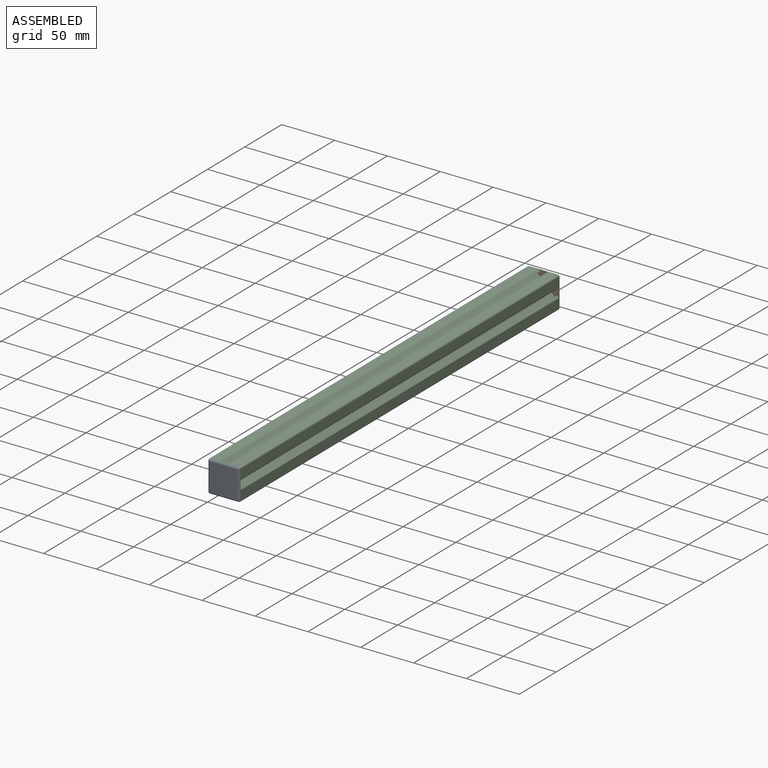
[diagram: assembled view]
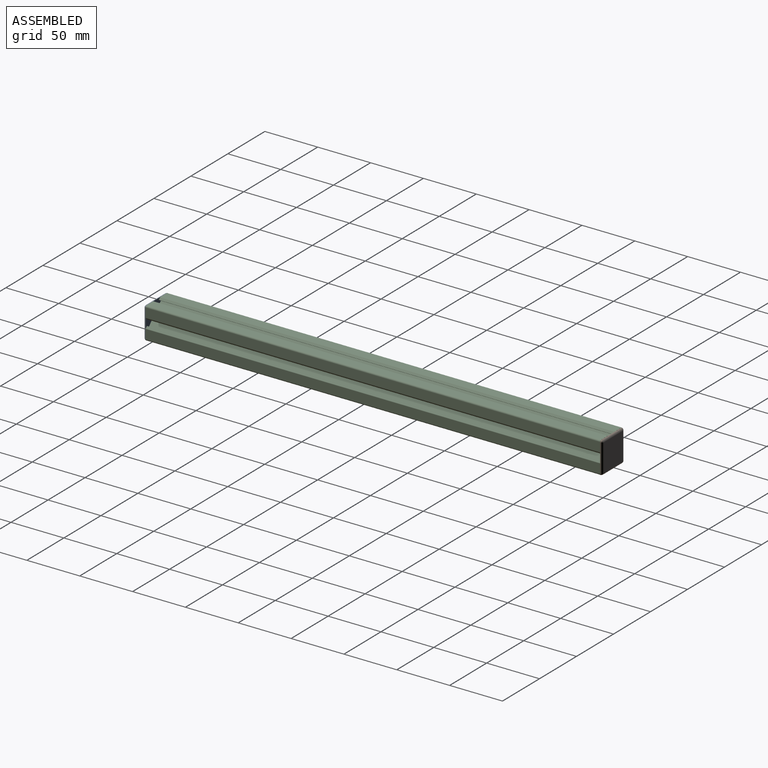
[diagram: assembled view, second angle]
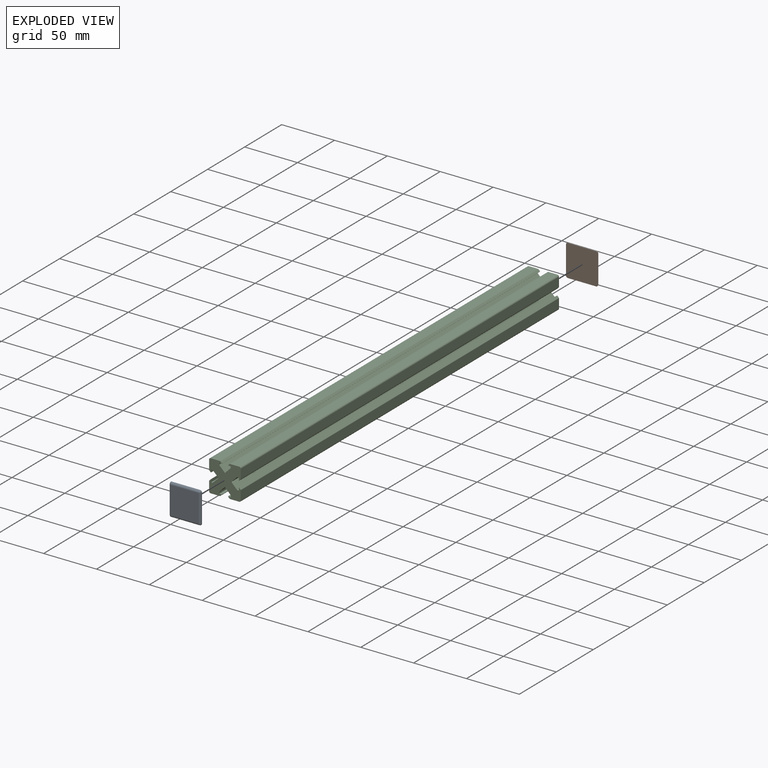
[diagram: exploded view]
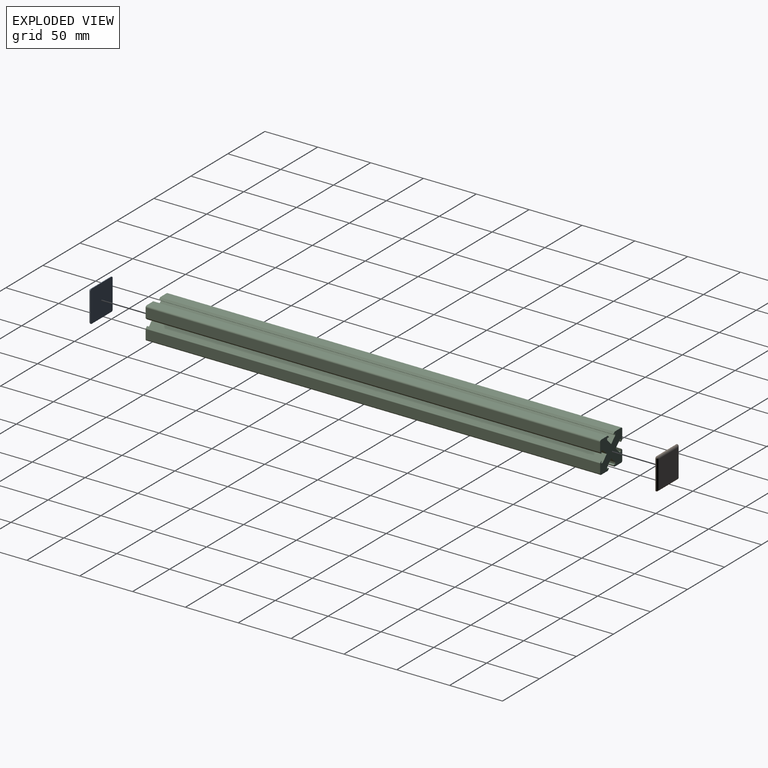
[diagram: exploded view, second angle]
ASSEMBLY  parts=3 mates=2
PART A: 10 faces, bbox 30x30x2.5 mm
  f0: plane 26x26mm, normal (0,0,1), area 676mm2, adj f2,f5,f6,f9
  f1: plane 30x30mm, normal (0,0,-1), area 897.8mm2, adj f2,f3,f4,f5,f6,f7,f8,f9
  f2: cylinder r=2mm len=26.8mm, axis (1,0,0), area 83.3mm2, adj f0,f1,f3,f4
  f3: bspline ~2.46x2mm, area 5.1mm2, adj f1,f2,f5
  f4: bspline ~2.46x2mm, area 5.1mm2, adj f1,f2,f6
  f5: cylinder r=2mm len=26.8mm, axis (0,1,0), area 83.3mm2, adj f0,f1,f3,f7
  f6: cylinder r=2mm len=26.8mm, axis (0,-1,0), area 83.3mm2, adj f0,f1,f4,f8
  f7: bspline ~2.46x2mm, area 5.1mm2, adj f1,f5,f9
  f8: bspline ~2.46x2mm, area 5.1mm2, adj f1,f6,f9
  f9: cylinder r=2mm len=26.8mm, axis (-1,0,0), area 83.3mm2, adj f0,f1,f7,f8
PART B: same geometry as A
PART C: 62 faces, bbox 30x30x430 mm
  f0: plane 430x5.5mm, normal (-0.71,0.71,0), area 3342.9mm2, adj f1,f59,f60,f61
  f1: plane 430x5.5mm, normal (0.71,0.71,0), area 3342.9mm2, adj f0,f2,f60,f61
  f2: plane 430x1.65mm, normal (1,0,0), area 708.9mm2, adj f1,f3,f60,f61
  f3: plane 430x2.61mm, normal (0,-1,0), area 1123.2mm2, adj f2,f4,f60,f61
  f4: plane 430x0.11mm, normal (1,0,0), area 45.8mm2, adj f3,f5,f60,f61
  f5: plane 430x1.52mm, normal (0.71,0.71,0), area 921.4mm2, adj f4,f6,f60,f61
  f6: cylinder r=0.6mm len=430mm, axis (0,0,-1), area 202.6mm2, adj f5,f7,f60,f61
  f7: plane 430x8.68mm, normal (0,1,0), area 3730.5mm2, adj f6,f8,f60,f61
  f8: cylinder r=1.5mm len=430mm, axis (0,0,-1), area 1013.2mm2, adj f7,f9,f60,f61
  f9: plane 430x8.68mm, normal (-1,0,0), area 3730.5mm2, adj f8,f10,f60,f61
  f10: cylinder r=0.6mm len=430mm, axis (0,0,-1), area 202.6mm2, adj f9,f11,f60,f61
  f11: plane 430x1.52mm, normal (-0.71,-0.71,0), area 921.4mm2, adj f10,f12,f60,f61
  f12: plane 430x0.11mm, normal (0,-1,0), area 45.8mm2, adj f11,f13,f60,f61
  f13: plane 430x2.61mm, normal (1,0,0), area 1123.2mm2, adj f12,f14,f60,f61
  f14: plane 430x1.65mm, normal (0,-1,0), area 708.9mm2, adj f13,f15,f60,f61
  f15: plane 430x5.5mm, normal (-0.71,-0.71,0), area 3342.9mm2, adj f14,f16,f60,f61
  f16: plane 430x5.5mm, normal (-0.71,0.71,0), area 3342.9mm2, adj f15,f17,f60,f61
  f17: plane 430x1.65mm, normal (0,1,0), area 708.9mm2, adj f16,f18,f60,f61
  f18: plane 430x2.61mm, normal (1,0,0), area 1123.2mm2, adj f17,f19,f60,f61
  f19: plane 430x0.11mm, normal (0,1,0), area 45.8mm2, adj f18,f20,f60,f61
  f20: plane 430x1.52mm, normal (-0.71,0.71,0), area 921.4mm2, adj f19,f21,f60,f61
  f21: cylinder r=0.6mm len=430mm, axis (0,0,-1), area 202.6mm2, adj f20,f22,f60,f61
  f22: plane 430x8.68mm, normal (-1,0,0), area 3730.5mm2, adj f21,f23,f60,f61
  f23: cylinder r=1.5mm len=430mm, axis (0,0,-1), area 1013.2mm2, adj f22,f24,f60,f61
  f24: plane 430x8.68mm, normal (0,-1,0), area 3730.5mm2, adj f23,f25,f60,f61
  f25: cylinder r=0.6mm len=430mm, axis (0,0,-1), area 202.6mm2, adj f24,f26,f60,f61
  f26: plane 430x1.52mm, normal (0.71,-0.71,0), area 921.4mm2, adj f25,f27,f60,f61
  f27: plane 430x0.11mm, normal (1,0,0), area 45.8mm2, adj f26,f28,f60,f61
  f28: plane 430x2.61mm, normal (0,1,0), area 1123.2mm2, adj f27,f29,f60,f61
  f29: plane 430x1.65mm, normal (1,0,0), area 708.9mm2, adj f28,f30,f60,f61
  f30: plane 430x5.5mm, normal (0.71,-0.71,0), area 3342.9mm2, adj f29,f31,f60,f61
  f31: plane 430x5.5mm, normal (-0.71,-0.71,0), area 3342.9mm2, adj f30,f32,f60,f61
  f32: plane 430x1.65mm, normal (-1,0,0), area 708.9mm2, adj f31,f33,f60,f61
  f33: plane 430x2.61mm, normal (0,1,0), area 1123.2mm2, adj f32,f34,f60,f61
  f34: plane 430x0.11mm, normal (-1,0,0), area 45.8mm2, adj f33,f35,f60,f61
  f35: plane 430x1.52mm, normal (-0.71,-0.71,0), area 921.4mm2, adj f34,f36,f60,f61
  f36: cylinder r=0.6mm len=430mm, axis (0,0,-1), area 202.6mm2, adj f35,f37,f60,f61
  f37: plane 430x8.68mm, normal (0,-1,0), area 3730.5mm2, adj f36,f38,f60,f61
  f38: cylinder r=1.5mm len=430mm, axis (0,0,-1), area 1013.2mm2, adj f37,f39,f60,f61
  f39: plane 430x8.68mm, normal (1,0,0), area 3730.5mm2, adj f38,f40,f60,f61
  f40: cylinder r=0.6mm len=430mm, axis (0,0,-1), area 202.6mm2, adj f39,f41,f60,f61
  f41: plane 430x1.52mm, normal (0.71,0.71,0), area 921.4mm2, adj f40,f42,f60,f61
  f42: plane 430x0.11mm, normal (0,1,0), area 45.8mm2, adj f41,f43,f60,f61
  f43: plane 430x2.61mm, normal (-1,0,0), area 1123.2mm2, adj f42,f44,f60,f61
  f44: plane 430x1.65mm, normal (0,1,0), area 708.9mm2, adj f43,f45,f60,f61
  f45: plane 430x5.5mm, normal (0.71,0.71,0), area 3342.9mm2, adj f44,f46,f60,f61
  f46: plane 430x5.5mm, normal (0.71,-0.71,0), area 3342.9mm2, adj f45,f47,f60,f61
  f47: plane 430x1.65mm, normal (0,-1,0), area 708.9mm2, adj f46,f48,f60,f61
  f48: plane 430x2.61mm, normal (-1,0,0), area 1123.2mm2, adj f47,f49,f60,f61
  f49: plane 430x0.11mm, normal (0,-1,0), area 45.8mm2, adj f48,f50,f60,f61
  f50: plane 430x1.52mm, normal (0.71,-0.71,0), area 921.4mm2, adj f49,f51,f60,f61
  f51: cylinder r=0.6mm len=430mm, axis (0,0,-1), area 202.6mm2, adj f50,f52,f60,f61
  f52: plane 430x8.68mm, normal (1,0,0), area 3730.5mm2, adj f51,f53,f60,f61
  f53: cylinder r=1.5mm len=430mm, axis (0,0,-1), area 1013.2mm2, adj f52,f54,f60,f61
  f54: plane 430x8.68mm, normal (0,1,0), area 3730.5mm2, adj f53,f55,f60,f61
  f55: cylinder r=0.6mm len=430mm, axis (0,0,-1), area 202.6mm2, adj f54,f56,f60,f61
  f56: plane 430x1.52mm, normal (-0.71,0.71,0), area 921.4mm2, adj f55,f57,f60,f61
  f57: plane 430x0.11mm, normal (-1,0,0), area 45.8mm2, adj f56,f58,f60,f61
  f58: plane 430x2.61mm, normal (0,-1,0), area 1123.2mm2, adj f57,f59,f60,f61
  f59: plane 430x1.65mm, normal (-1,0,0), area 708.9mm2, adj f0,f58,f60,f61
  f60: plane 30x30mm, normal (0,0,1), area 651.7mm2, adj f0,f1,f2,f3,f4,f5,f6,f7
  f61: plane 30x30mm, normal (0,0,-1), area 651.7mm2, adj f0,f1,f2,f3,f4,f5,f6,f7
PLACE A rot(axis=(1,0,0),90deg) t=(-35.66,-197.08,57.76)mm
PLACE B rot(axis=(-1,0,0),90deg) t=(-35.56,232.92,57.66)mm
PLACE C rot(axis=(-1,0,0),90deg) t=(-35.56,-197.08,57.76)mm
MATE fastened A.f1 <-> C.f61  axis (0,-1,0) through (-49.06,-197.08,42.76)mm
MATE fastened B.f1 <-> C.f60  axis (0,-1,0) through (-50.56,232.92,44.26)mm
